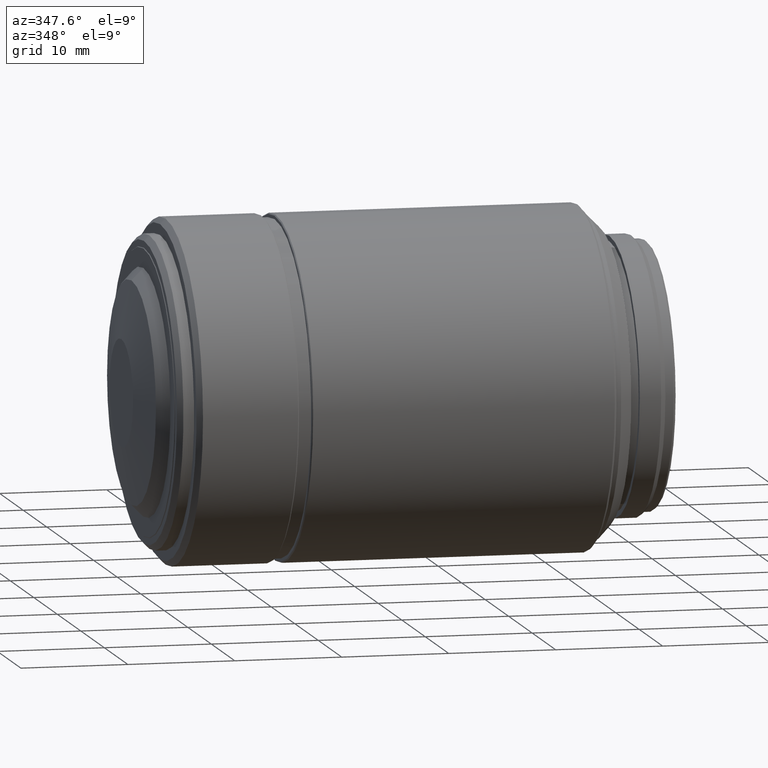
[diagram: clean part render]
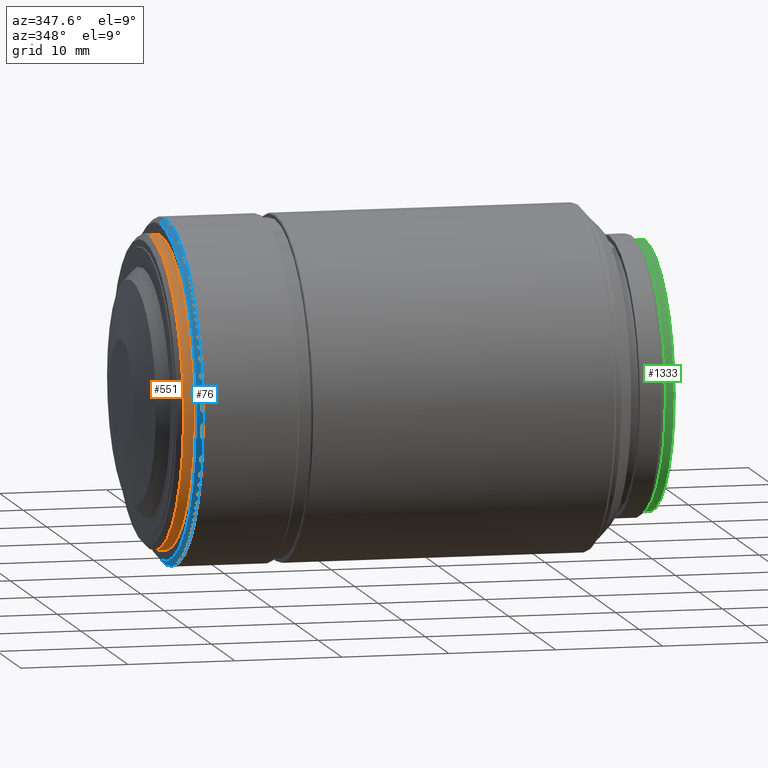
[diagram: same view with three faces highlighted in distinct colors, each labeled with its STEP entity id]
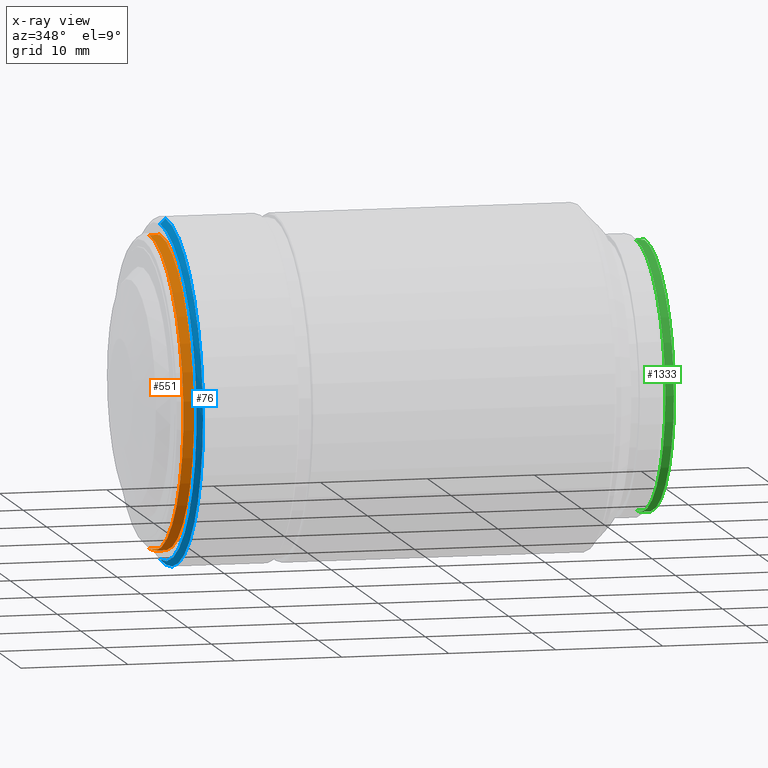
[diagram: x-ray of the same camera — body ghosted, the three highlighted faces saturated]
A machine part, auxiliary view with three faces highlighted in distinct colors.
The next image is the same camera in x-ray (body ghosted, the three faces saturated) — at least one of them is partly hidden behind the body in this view.
Their STEP definitions:

[orange] entity #551 — the highlighted cylindrical surface (partial cylindrical patch) has radius 14.5 mm, axis along (1, 0, 0).
#75 = ORIENTED_EDGE ( 'NONE', *, *, #1224, .T. ) ;
#115 = DIRECTION ( 'NONE',  ( 0.000000000000000000, 1.000000000000000000, 0.000000000000000000 ) ) ;
#162 = VERTEX_POINT ( 'NONE', #1185 ) ;
#186 = LINE ( 'NONE', #806, #886 ) ;
#213 = FACE_OUTER_BOUND ( 'NONE', #410, .T. ) ;
#259 = VECTOR ( 'NONE', #526, 1000.000000000000000 ) ;
#305 = CARTESIAN_POINT ( 'NONE',  ( 3.973493644127979785, -14.50000000000000000, 0.000000000000000000 ) ) ;
#396 = EDGE_CURVE ( 'NONE', #1314, #162, #186, .T. ) ;
#410 = EDGE_LOOP ( 'NONE', ( #1421, #75, #904, #861 ) ) ;
#440 = EDGE_CURVE ( 'NONE', #996, #1394, #1530, .T. ) ;
#453 = AXIS2_PLACEMENT_3D ( 'NONE', #1412, #707, #115 ) ;
#471 = CYLINDRICAL_SURFACE ( 'NONE', #1369, 14.50000000000000000 ) ;
#501 = CIRCLE ( 'NONE', #453, 14.50000000000000000 ) ;
#526 = DIRECTION ( 'NONE',  ( 1.000000000000000000, 0.000000000000000000, 0.000000000000000000 ) ) ;
#534 = EDGE_CURVE ( 'NONE', #1394, #162, #501, .T. ) ;
#551 = ADVANCED_FACE ( 'NONE', ( #213 ), #471, .T. ) ;
#562 = AXIS2_PLACEMENT_3D ( 'NONE', #1382, #746, #1352 ) ;
#599 = DIRECTION ( 'NONE',  ( 1.000000000000000000, 0.000000000000000000, 0.000000000000000000 ) ) ;
#707 = DIRECTION ( 'NONE',  ( 1.000000000000000000, 0.000000000000000000, 0.000000000000000000 ) ) ;
#746 = DIRECTION ( 'NONE',  ( 1.000000000000000000, 0.000000000000000000, 0.000000000000000000 ) ) ;
#775 = CARTESIAN_POINT ( 'NONE',  ( 3.473493450732060062, -14.50000000000000000, 0.000000000000000000 ) ) ;
#806 = CARTESIAN_POINT ( 'NONE',  ( 3.473493450732060062, 14.50000000000000000, -1.775737858763660240E-15 ) ) ;
#846 = DIRECTION ( 'NONE',  ( 0.000000000000000000, -1.000000000000000000, 0.000000000000000000 ) ) ;
#861 = ORIENTED_EDGE ( 'NONE', *, *, #534, .F. ) ;
#877 = CARTESIAN_POINT ( 'NONE',  ( 2.973493257336150108, 14.50000000000000000, -1.775737858763660240E-15 ) ) ;
#886 = VECTOR ( 'NONE', #1286, 1000.000000000000000 ) ;
#904 = ORIENTED_EDGE ( 'NONE', *, *, #396, .T. ) ;
#996 = VERTEX_POINT ( 'NONE', #1337 ) ;
#1185 = CARTESIAN_POINT ( 'NONE',  ( 3.973493644127979785, 14.50000000000000000, -1.775737858763660240E-15 ) ) ;
#1224 = EDGE_CURVE ( 'NONE', #996, #1314, #1248, .T. ) ;
#1248 = CIRCLE ( 'NONE', #562, 14.50000000000000000 ) ;
#1286 = DIRECTION ( 'NONE',  ( 1.000000000000000000, 0.000000000000000000, 0.000000000000000000 ) ) ;
#1314 = VERTEX_POINT ( 'NONE', #877 ) ;
#1337 = CARTESIAN_POINT ( 'NONE',  ( 2.973493257336150108, -14.50000000000000000, 0.000000000000000000 ) ) ;
#1352 = DIRECTION ( 'NONE',  ( 0.000000000000000000, 1.000000000000000000, 0.000000000000000000 ) ) ;
#1369 = AXIS2_PLACEMENT_3D ( 'NONE', #1546, #599, #846 ) ;
#1382 = CARTESIAN_POINT ( 'NONE',  ( 2.973493257336150108, 0.000000000000000000, 0.000000000000000000 ) ) ;
#1394 = VERTEX_POINT ( 'NONE', #305 ) ;
#1412 = CARTESIAN_POINT ( 'NONE',  ( 3.973493644127979785, 0.000000000000000000, 0.000000000000000000 ) ) ;
#1421 = ORIENTED_EDGE ( 'NONE', *, *, #440, .F. ) ;
#1530 = LINE ( 'NONE', #775, #259 ) ;
#1546 = CARTESIAN_POINT ( 'NONE',  ( 3.473493450732060062, 0.000000000000000000, 0.000000000000000000 ) ) ;

[blue] entity #76 — the highlighted conical surface has half-angle 45 deg.
#32 = VECTOR ( 'NONE', #727, 1000.000000000000114 ) ;
#40 = DIRECTION ( 'NONE',  ( 0.7071067811865489050, -0.7071067811865460184, 0.000000000000000000 ) ) ;
#70 = CARTESIAN_POINT ( 'NONE',  ( 4.473493644127980673, -16.00000000000000000, 0.000000000000000000 ) ) ;
#76 = ADVANCED_FACE ( 'NONE', ( #98 ), #498, .T. ) ;
#79 = CARTESIAN_POINT ( 'NONE',  ( 4.473493644127980673, 0.000000000000000000, 0.000000000000000000 ) ) ;
#98 = FACE_OUTER_BOUND ( 'NONE', #1244, .T. ) ;
#151 = CARTESIAN_POINT ( 'NONE',  ( 4.473493644127980673, -16.00000000000000000, 0.000000000000000000 ) ) ;
#174 = CARTESIAN_POINT ( 'NONE',  ( 3.973493644127979785, -15.50000000000000000, 0.000000000000000000 ) ) ;
#203 = DIRECTION ( 'NONE',  ( 0.000000000000000000, -1.000000000000000000, 0.000000000000000000 ) ) ;
#357 = VERTEX_POINT ( 'NONE', #70 ) ;
#370 = EDGE_CURVE ( 'NONE', #926, #1092, #1093, .T. ) ;
#406 = AXIS2_PLACEMENT_3D ( 'NONE', #79, #1403, #668 ) ;
#417 = DIRECTION ( 'NONE',  ( 1.000000000000000000, 0.000000000000000000, 0.000000000000000000 ) ) ;
#429 = AXIS2_PLACEMENT_3D ( 'NONE', #1401, #417, #561 ) ;
#448 = CARTESIAN_POINT ( 'NONE',  ( 4.473493644127980673, 16.00000000000000000, -1.959434878635769865E-15 ) ) ;
#498 = CONICAL_SURFACE ( 'NONE', #1267, 16.00000000000000000, 0.7853981633974469467 ) ;
#510 = EDGE_CURVE ( 'NONE', #1092, #545, #593, .T. ) ;
#527 = ORIENTED_EDGE ( 'NONE', *, *, #1134, .F. ) ;
#545 = VERTEX_POINT ( 'NONE', #1178 ) ;
#553 = ORIENTED_EDGE ( 'NONE', *, *, #510, .T. ) ;
#558 = CIRCLE ( 'NONE', #406, 16.00000000000000000 ) ;
#561 = DIRECTION ( 'NONE',  ( 0.000000000000000000, 1.000000000000000000, 0.000000000000000000 ) ) ;
#593 = LINE ( 'NONE', #448, #32 ) ;
#665 = VECTOR ( 'NONE', #40, 1000.000000000000114 ) ;
#668 = DIRECTION ( 'NONE',  ( 0.000000000000000000, 1.000000000000000000, 0.000000000000000000 ) ) ;
#727 = DIRECTION ( 'NONE',  ( 0.7071067811865489050, 0.7071067811865460184, -8.659560562354918067E-17 ) ) ;
#805 = CARTESIAN_POINT ( 'NONE',  ( 4.473493644127980673, 0.000000000000000000, 0.000000000000000000 ) ) ;
#926 = VERTEX_POINT ( 'NONE', #174 ) ;
#1092 = VERTEX_POINT ( 'NONE', #1182 ) ;
#1093 = CIRCLE ( 'NONE', #429, 15.50000000000000000 ) ;
#1134 = EDGE_CURVE ( 'NONE', #926, #357, #1241, .T. ) ;
#1139 = ORIENTED_EDGE ( 'NONE', *, *, #370, .T. ) ;
#1178 = CARTESIAN_POINT ( 'NONE',  ( 4.473493644127980673, 16.00000000000000000, -1.959434878635769865E-15 ) ) ;
#1182 = CARTESIAN_POINT ( 'NONE',  ( 3.973493644127979785, 15.50000000000000000, -1.898202538678399924E-15 ) ) ;
#1241 = LINE ( 'NONE', #151, #665 ) ;
#1244 = EDGE_LOOP ( 'NONE', ( #1139, #553, #1485, #527 ) ) ;
#1267 = AXIS2_PLACEMENT_3D ( 'NONE', #805, #1529, #203 ) ;
#1350 = EDGE_CURVE ( 'NONE', #357, #545, #558, .T. ) ;
#1401 = CARTESIAN_POINT ( 'NONE',  ( 3.973493644127979785, 0.000000000000000000, 0.000000000000000000 ) ) ;
#1403 = DIRECTION ( 'NONE',  ( 1.000000000000000000, 0.000000000000000000, 0.000000000000000000 ) ) ;
#1485 = ORIENTED_EDGE ( 'NONE', *, *, #1350, .F. ) ;
#1529 = DIRECTION ( 'NONE',  ( 1.000000000000000000, 0.000000000000000000, 0.000000000000000000 ) ) ;

[green] entity #1333 — the highlighted cylindrical surface (partial cylindrical patch) has radius 12.5 mm, axis along (1, 0, 0).
#3 = ORIENTED_EDGE ( 'NONE', *, *, #1290, .F. ) ;
#45 = ORIENTED_EDGE ( 'NONE', *, *, #1164, .T. ) ;
#53 = DIRECTION ( 'NONE',  ( 1.000000000000000000, 0.000000000000000000, 0.000000000000000000 ) ) ;
#157 = CARTESIAN_POINT ( 'NONE',  ( 49.27349364412800270, 12.50000000000000000, 0.000000000000000000 ) ) ;
#158 = EDGE_LOOP ( 'NONE', ( #1113, #1287, #45, #3 ) ) ;
#195 = FACE_OUTER_BOUND ( 'NONE', #158, .T. ) ;
#214 = VERTEX_POINT ( 'NONE', #865 ) ;
#261 = DIRECTION ( 'NONE',  ( 1.000000000000000000, 0.000000000000000000, 0.000000000000000000 ) ) ;
#290 = DIRECTION ( 'NONE',  ( 1.000000000000000000, 0.000000000000000000, 0.000000000000000000 ) ) ;
#321 = CARTESIAN_POINT ( 'NONE',  ( 48.87349364412799702, 0.000000000000000000, 0.000000000000000000 ) ) ;
#343 = VERTEX_POINT ( 'NONE', #1511 ) ;
#439 = DIRECTION ( 'NONE',  ( 0.000000000000000000, -1.000000000000000000, 0.000000000000000000 ) ) ;
#513 = CARTESIAN_POINT ( 'NONE',  ( 49.27349364412800270, -12.50000000000000000, -1.530808498934190141E-15 ) ) ;
#604 = DIRECTION ( 'NONE',  ( 0.000000000000000000, 1.000000000000000000, 0.000000000000000000 ) ) ;
#611 = CIRCLE ( 'NONE', #1062, 12.50000000000000000 ) ;
#644 = LINE ( 'NONE', #1256, #1008 ) ;
#654 = DIRECTION ( 'NONE',  ( 0.000000000000000000, 1.000000000000000000, 0.000000000000000000 ) ) ;
#656 = CARTESIAN_POINT ( 'NONE',  ( 48.87349364412799702, -12.50000000000000000, 0.000000000000000000 ) ) ;
#676 = CYLINDRICAL_SURFACE ( 'NONE', #794, 12.50000000000000000 ) ;
#693 = VERTEX_POINT ( 'NONE', #157 ) ;
#794 = AXIS2_PLACEMENT_3D ( 'NONE', #321, #914, #439 ) ;
#823 = AXIS2_PLACEMENT_3D ( 'NONE', #1216, #261, #604 ) ;
#865 = CARTESIAN_POINT ( 'NONE',  ( 48.47349364412799844, 12.50000000000000000, -1.530808498934190141E-15 ) ) ;
#871 = CIRCLE ( 'NONE', #823, 12.50000000000000000 ) ;
#894 = LINE ( 'NONE', #656, #1098 ) ;
#914 = DIRECTION ( 'NONE',  ( 1.000000000000000000, 0.000000000000000000, 0.000000000000000000 ) ) ;
#940 = EDGE_CURVE ( 'NONE', #343, #1158, #894, .T. ) ;
#983 = CARTESIAN_POINT ( 'NONE',  ( 49.27349364412800270, 0.000000000000000000, 0.000000000000000000 ) ) ;
#1008 = VECTOR ( 'NONE', #53, 1000.000000000000000 ) ;
#1034 = EDGE_CURVE ( 'NONE', #343, #214, #871, .T. ) ;
#1062 = AXIS2_PLACEMENT_3D ( 'NONE', #983, #290, #654 ) ;
#1098 = VECTOR ( 'NONE', #1306, 1000.000000000000000 ) ;
#1113 = ORIENTED_EDGE ( 'NONE', *, *, #940, .F. ) ;
#1158 = VERTEX_POINT ( 'NONE', #513 ) ;
#1164 = EDGE_CURVE ( 'NONE', #214, #693, #644, .T. ) ;
#1216 = CARTESIAN_POINT ( 'NONE',  ( 48.47349364412799844, 0.000000000000000000, 0.000000000000000000 ) ) ;
#1256 = CARTESIAN_POINT ( 'NONE',  ( 48.87349364412799702, 12.50000000000000000, -1.530808498934190141E-15 ) ) ;
#1287 = ORIENTED_EDGE ( 'NONE', *, *, #1034, .T. ) ;
#1290 = EDGE_CURVE ( 'NONE', #1158, #693, #611, .T. ) ;
#1306 = DIRECTION ( 'NONE',  ( 1.000000000000000000, 0.000000000000000000, 0.000000000000000000 ) ) ;
#1333 = ADVANCED_FACE ( 'NONE', ( #195 ), #676, .T. ) ;
#1511 = CARTESIAN_POINT ( 'NONE',  ( 48.47349364412799844, -12.50000000000000000, 0.000000000000000000 ) ) ;